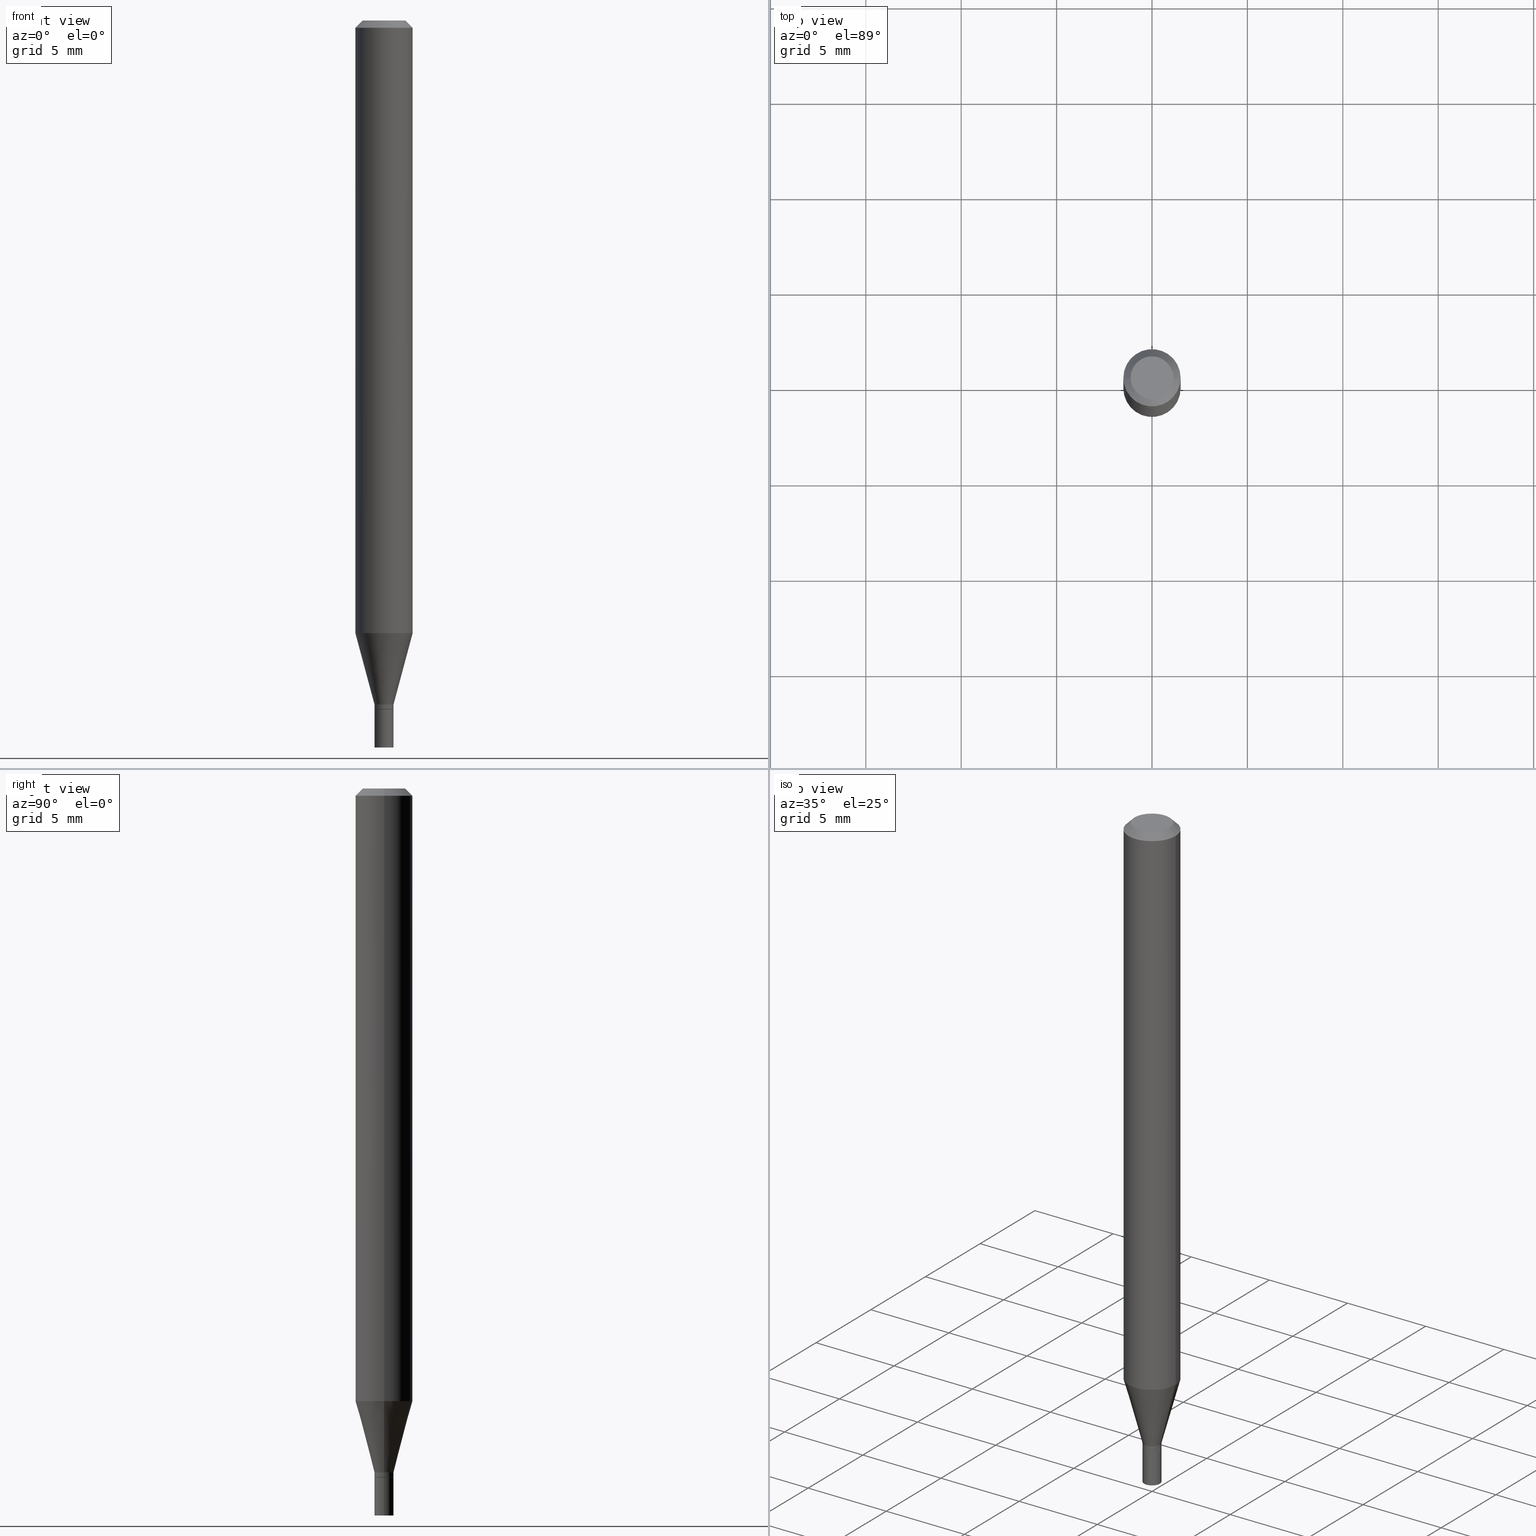
[diagram: canonical four-view strip — front | top / right | iso, engineering-drawing reading convention]
A machine part, canonical four-view strip (front | top / right | iso — engineering-drawing reading convention). The complete STEP part file that produces these views, byte-faithful:
ISO-10303-21;
HEADER;
FILE_DESCRIPTION (( 'STEP AP203' ),
    '1' );
FILE_NAME ('49178.STEP',
    '2024-03-12T20:01:40',
    ( '' ),
    ( '' ),
    'SwSTEP 2.0',
    'SolidWorks 2023',
    '' );
FILE_SCHEMA (( 'CONFIG_CONTROL_DESIGN' ));
ENDSEC;

DATA;
#1 = ORIENTED_EDGE ( 'NONE', *, *, #444, .T. ) ;
#2 = CARTESIAN_POINT ( 'NONE',  ( 3.475744814230934489E-29, -4.962442426897762471E-15, -1.421300000000000008 ) ) ;
#3 = EDGE_CURVE ( 'NONE', #101, #411, #175, .T. ) ;
#4 = ORIENTED_EDGE ( 'NONE', *, *, #112, .T. ) ;
#5 = LINE ( 'NONE', #40, #166 ) ;
#6 = AXIS2_PLACEMENT_3D ( 'NONE', #19, #452, #25 ) ;
#7 = PERSON_AND_ORGANIZATION ( #326, #371 ) ;
#8 = CARTESIAN_POINT ( 'NONE',  ( 0.01969999999999978713, -1.375643647504179818E-16, 9.606068248317889872E-31 ) ) ;
#9 = CALENDAR_DATE ( 2024, 12, 3 ) ;
#10 = DIRECTION ( 'NONE',  ( 1.000000000000000000, -6.982962677686265922E-15, 4.819687581474398999E-29 ) ) ;
#11 = MECHANICAL_CONTEXT ( 'NONE', #106, 'mechanical' ) ;
#12 = ORIENTED_EDGE ( 'NONE', *, *, #215, .F. ) ;
#13 = PRODUCT_DEFINITION ( 'UNKNOWN', '', #350, #96 ) ;
#14 = DIRECTION ( 'NONE',  ( 0.7071067811865656694, -2.468850131082446387E-15, 0.7071067811865294761 ) ) ;
#15 = VECTOR ( 'NONE', #37, 39.37007874015748143 ) ;
#16 = ORIENTED_EDGE ( 'NONE', *, *, #258, .F. ) ;
#17 = CARTESIAN_POINT ( 'NONE',  ( -0.01919999999999999485, -4.823368994457712071E-15, -1.421300000000000008 ) ) ;
#18 = EDGE_CURVE ( 'NONE', #271, #397, #209, .T. ) ;
#19 = CARTESIAN_POINT ( 'NONE',  ( 0.000000000000000000, 0.000000000000000000, 0.000000000000000000 ) ) ;
#20 = COORDINATED_UNIVERSAL_TIME_OFFSET ( 5, 0, .BEHIND. ) ;
#21 = VERTEX_POINT ( 'NONE', #341 ) ;
#22 = CARTESIAN_POINT ( 'NONE',  ( 3.668203209277705088E-31, -5.237222008264718399E-17, -0.01499999999999999944 ) ) ;
#23 = ORIENTED_EDGE ( 'NONE', *, *, #54, .F. ) ;
#24 = ORIENTED_EDGE ( 'NONE', *, *, #65, .F. ) ;
#25 = DIRECTION ( 'NONE',  ( 1.000000000000000000, -6.982962677686267499E-15, 4.876176775795935793E-29 ) ) ;
#26 = CARTESIAN_POINT ( 'NONE',  ( 3.450556485527227711E-29, -4.926480169107677920E-15, -1.411000000000000032 ) ) ;
#27 = CIRCLE ( 'NONE', #279, 0.01969999999999965529 ) ;
#28 = LOCAL_TIME ( 16, 1, 40.00000000000000000, #307 ) ;
#29 = CLOSED_SHELL ( 'NONE', ( #30, #170, #220, #377 ) ) ;
#30 = ADVANCED_FACE ( 'NONE', ( #165 ), #97, .T. ) ;
#31 = CARTESIAN_POINT ( 'NONE',  ( -0.01969999999999999876, -4.959855298636500621E-15, -1.500000000000000222 ) ) ;
#32 = CONICAL_SURFACE ( 'NONE', #160, 0.05905000000000001914, 0.7853981633974372878 ) ;
#33 = ORIENTED_EDGE ( 'NONE', *, *, #98, .F. ) ;
#34 = CARTESIAN_POINT ( 'NONE',  ( 0.05905000000000001914, -4.826078435953056786E-15, -1.264143800722163924 ) ) ;
#35 = DIRECTION ( 'NONE',  ( 1.000000000000000000, -6.982962677686258033E-15, 0.000000000000000000 ) ) ;
#36 = EDGE_LOOP ( 'NONE', ( #418, #274, #221, #265 ) ) ;
#37 = DIRECTION ( 'NONE',  ( -0.7071067811865656694, 7.493145998870420424E-15, 0.7071067811865294761 ) ) ;
#38 = AXIS2_PLACEMENT_3D ( 'NONE', #299, #334, #224 ) ;
#39 = PERSON_AND_ORGANIZATION ( #326, #371 ) ;
#40 = CARTESIAN_POINT ( 'NONE',  ( 0.01969999999999965529, -5.064044533858094768E-15, -1.411000000000000032 ) ) ;
#41 = EDGE_CURVE ( 'NONE', #21, #338, #313, .T. ) ;
#42 = ORIENTED_EDGE ( 'NONE', *, *, #79, .F. ) ;
#43 = PLANE ( 'NONE',  #316 ) ;
#44 = ORIENTED_EDGE ( 'NONE', *, *, #306, .F. ) ;
#45 = DIRECTION ( 'NONE',  ( -2.445468806185136597E-29, 3.491481338843145583E-15, 1.000000000000000000 ) ) ;
#46 = AXIS2_PLACEMENT_3D ( 'NONE', #205, #64, #169 ) ;
#47 = ORIENTED_EDGE ( 'NONE', *, *, #456, .F. ) ;
#48 = CARTESIAN_POINT ( 'NONE',  ( 3.475744814230934489E-29, -4.962442426897762471E-15, -1.421300000000000008 ) ) ;
#49 = PERSON_AND_ORGANIZATION ( #326, #371 ) ;
#50 = DIRECTION ( 'NONE',  ( -2.445468806185136597E-29, 3.491481338843145583E-15, 1.000000000000000000 ) ) ;
#51 = ORIENTED_EDGE ( 'NONE', *, *, #247, .F. ) ;
#52 = CARTESIAN_POINT ( 'NONE',  ( 0.000000000000000000, 0.000000000000000000, 0.000000000000000000 ) ) ;
#53 = APPROVAL_ROLE ( '' ) ;
#54 = EDGE_CURVE ( 'NONE', #129, #405, #457, .T. ) ;
#55 = AXIS2_PLACEMENT_3D ( 'NONE', #267, #50, #419 ) ;
#56 = FACE_OUTER_BOUND ( 'NONE', #85, .T. ) ;
#57 = ORIENTED_EDGE ( 'NONE', *, *, #392, .T. ) ;
#58 = DIRECTION ( 'NONE',  ( 1.000000000000000000, -6.982962677686270655E-15, 0.000000000000000000 ) ) ;
#59 = ORIENTED_EDGE ( 'NONE', *, *, #258, .T. ) ;
#60 = DIRECTION ( 'NONE',  ( -2.445468806185136597E-29, 3.491481338843145583E-15, 1.000000000000000000 ) ) ;
#61 = CIRCLE ( 'NONE', #130, 0.01969999999999965529 ) ;
#62 = ORIENTED_EDGE ( 'NONE', *, *, #202, .T. ) ;
#63 = ADVANCED_FACE ( 'NONE', ( #134 ), #459, .F. ) ;
#64 = DIRECTION ( 'NONE',  ( -2.445468806185136597E-29, 3.491481338843145583E-15, 1.000000000000000000 ) ) ;
#65 = EDGE_CURVE ( 'NONE', #324, #21, #425, .T. ) ;
#66 = ORIENTED_EDGE ( 'NONE', *, *, #247, .T. ) ;
#67 = CARTESIAN_POINT ( 'NONE',  ( -8.641182519006289553E-45, 1.233731848647591164E-30, 3.533548453838711334E-16 ) ) ;
#68 = APPROVAL_ROLE ( '' ) ;
#69 = ADVANCED_FACE ( 'NONE', ( #403 ), #344, .T. ) ;
#70 = DIRECTION ( 'NONE',  ( -2.445468806185136597E-29, 3.491481338843145583E-15, 1.000000000000000000 ) ) ;
#71 = CARTESIAN_POINT ( 'NONE',  ( 0.000000000000000000, 0.000000000000000000, 0.000000000000000000 ) ) ;
#72 = CARTESIAN_POINT ( 'NONE',  ( 0.01969999999999999876, -1.375643647504194363E-16, 9.606068248317991466E-31 ) ) ;
#73 = PERSON_AND_ORGANIZATION_ROLE ( 'design_owner' ) ;
#74 = DIRECTION ( 'NONE',  ( 1.000000000000000000, -6.982962677686278543E-15, 0.000000000000000000 ) ) ;
#75 = ORIENTED_EDGE ( 'NONE', *, *, #98, .T. ) ;
#76 = FACE_OUTER_BOUND ( 'NONE', #408, .T. ) ;
#77 = VECTOR ( 'NONE', #288, 39.37007874015748143 ) ;
#78 = EDGE_CURVE ( 'NONE', #271, #197, #213, .T. ) ;
#79 = EDGE_CURVE ( 'NONE', #101, #365, #178, .T. ) ;
#80 = ORIENTED_EDGE ( 'NONE', *, *, #41, .T. ) ;
#81 = DIRECTION ( 'NONE',  ( -2.445468806185136597E-29, 3.491481338843145583E-15, 1.000000000000000000 ) ) ;
#82 = PERSON_AND_ORGANIZATION ( #326, #371 ) ;
#83 = ORIENTED_EDGE ( 'NONE', *, *, #18, .F. ) ;
#84 = CARTESIAN_POINT ( 'NONE',  ( 3.668203209277705088E-31, -5.237222008264718399E-17, -0.01499999999999999944 ) ) ;
#85 = EDGE_LOOP ( 'NONE', ( #320, #59, #4, #464 ) ) ;
#86 = DIRECTION ( 'NONE',  ( 2.438088387897960049E-29, -3.491481338843145188E-15, -1.000000000000000000 ) ) ;
#87 = APPROVAL_DATE_TIME ( #417, #273 ) ;
#88 = ORIENTED_EDGE ( 'NONE', *, *, #456, .T. ) ;
#89 = FACE_OUTER_BOUND ( 'NONE', #437, .T. ) ;
#90 = PERSON_AND_ORGANIZATION_ROLE ( 'classification_officer' ) ;
#91 = ORIENTED_EDGE ( 'NONE', *, *, #78, .T. ) ;
#92 = FACE_OUTER_BOUND ( 'NONE', #136, .T. ) ;
#93 = APPLICATION_CONTEXT ( 'configuration controlled 3d designs of mechanical parts and assemblies' ) ;
#94 = CARTESIAN_POINT ( 'NONE',  ( 3.475744814230934489E-29, -4.962442426897762471E-15, -1.421300000000000008 ) ) ;
#95 = CC_DESIGN_APPROVAL ( #103, ( #13 ) ) ;
#96 = DESIGN_CONTEXT ( 'detailed design', #93, 'design' ) ;
#97 = CYLINDRICAL_SURFACE ( 'NONE', #184, 0.01969999999999999876 ) ;
#98 = EDGE_CURVE ( 'NONE', #324, #137, #328, .T. ) ;
#99 = DIRECTION ( 'NONE',  ( -1.000000000000000000, 6.982962677686265922E-15, -4.876176775795935793E-29 ) ) ;
#100 = CIRCLE ( 'NONE', #433, 0.01969999999999999876 ) ;
#101 = VERTEX_POINT ( 'NONE', #31 ) ;
#102 = CARTESIAN_POINT ( 'NONE',  ( 3.474522079827842248E-29, -4.960696686228341756E-15, -1.420800000000000063 ) ) ;
#103 = APPROVAL ( #148, 'UNSPECIFIED' ) ;
#104 = APPROVAL_STATUS ( 'not_yet_approved' ) ;
#105 = CC_DESIGN_PERSON_AND_ORGANIZATION_ASSIGNMENT ( #332, #90, ( #345 ) ) ;
#106 = APPLICATION_CONTEXT ( 'configuration controlled 3d designs of mechanical parts and assemblies' ) ;
#107 = CARTESIAN_POINT ( 'NONE',  ( 3.576687321579069994E-29, -5.368277968210015545E-15, -1.500000000000000222 ) ) ;
#108 = AXIS2_PLACEMENT_3D ( 'NONE', #2, #70, #211 ) ;
#109 = CC_DESIGN_APPROVAL ( #372, ( #350 ) ) ;
#110 = CARTESIAN_POINT ( 'NONE',  ( -0.05905000000000001914, 4.195754854663392958E-16, -2.904631170795522943E-30 ) ) ;
#111 = CALENDAR_DATE ( 2024, 12, 3 ) ;
#112 = EDGE_CURVE ( 'NONE', #429, #129, #5, .T. ) ;
#113 = DIRECTION ( 'NONE',  ( -2.445468806185136597E-29, 3.491481338843145583E-15, 1.000000000000000000 ) ) ;
#114 = PERSON_AND_ORGANIZATION_ROLE ( 'creator' ) ;
#115 = ORIENTED_EDGE ( 'NONE', *, *, #428, .T. ) ;
#116 = DIRECTION ( 'NONE',  ( -2.445468806185136597E-29, 3.491481338843145583E-15, 1.000000000000000000 ) ) ;
#117 = VECTOR ( 'NONE', #348, 39.37007874015748143 ) ;
#118 = CC_DESIGN_PERSON_AND_ORGANIZATION_ASSIGNMENT ( #49, #406, ( #350 ) ) ;
#119 = DATE_TIME_ROLE ( 'creation_date' ) ;
#120 = FACE_OUTER_BOUND ( 'NONE', #315, .T. ) ;
#121 = ORIENTED_EDGE ( 'NONE', *, *, #428, .F. ) ;
#122 = CARTESIAN_POINT ( 'NONE',  ( -0.04404999999999999888, 3.337856159934041534E-16, 3.533548453838689148E-16 ) ) ;
#123 = FACE_OUTER_BOUND ( 'NONE', #281, .T. ) ;
#124 = AXIS2_PLACEMENT_3D ( 'NONE', #254, #81, #186 ) ;
#125 = CONICAL_SURFACE ( 'NONE', #295, 0.01969999999999965529, 0.2617993877991505181 ) ;
#126 = CARTESIAN_POINT ( 'NONE',  ( 0.01919999999999999485, -5.096515310309338678E-15, -1.421300000000000008 ) ) ;
#127 = DIRECTION ( 'NONE',  ( 1.000000000000000000, -6.982962677686252511E-15, 0.000000000000000000 ) ) ;
#128 = DATE_AND_TIME ( #303, #249 ) ;
#129 = VERTEX_POINT ( 'NONE', #34 ) ;
#130 = AXIS2_PLACEMENT_3D ( 'NONE', #194, #415, #127 ) ;
#131 = CIRCLE ( 'NONE', #191, 0.01969999999999991896 ) ;
#132 = DIRECTION ( 'NONE',  ( 2.438088387897960049E-29, -3.491481338843145188E-15, -1.000000000000000000 ) ) ;
#133 = CC_DESIGN_DATE_AND_TIME_ASSIGNMENT ( #269, #226, ( #345 ) ) ;
#134 = FACE_OUTER_BOUND ( 'NONE', #402, .T. ) ;
#135 = AXIS2_PLACEMENT_3D ( 'NONE', #107, #361, #436 ) ;
#136 = EDGE_LOOP ( 'NONE', ( #62, #80, #44, #375 ) ) ;
#137 = VERTEX_POINT ( 'NONE', #245 ) ;
#138 = CARTESIAN_POINT ( 'NONE',  ( 0.01969999999999999876, -5.100006791648182474E-15, -1.421300000000000008 ) ) ;
#139 = ORIENTED_EDGE ( 'NONE', *, *, #387, .T. ) ;
#140 = DIRECTION ( 'NONE',  ( -2.445468806185136597E-29, 3.491481338843145583E-15, 1.000000000000000000 ) ) ;
#141 =( NAMED_UNIT ( * ) SI_UNIT ( $, .STERADIAN. ) SOLID_ANGLE_UNIT ( ) );
#142 = ORIENTED_EDGE ( 'NONE', *, *, #430, .T. ) ;
#143 = LINE ( 'NONE', #72, #441 ) ;
#144 = MANIFOLD_SOLID_BREP ( 'Body-Move/Copy2[2]', #381 ) ;
#145 = FACE_OUTER_BOUND ( 'NONE', #206, .T. ) ;
#146 = MANIFOLD_SOLID_BREP ( 'Body-Move/Copy2[1]', #29 ) ;
#147 = CYLINDRICAL_SURFACE ( 'NONE', #379, 0.05905000000000001914 ) ;
#148 = APPROVAL_STATUS ( 'not_yet_approved' ) ;
#149 = VERTEX_POINT ( 'NONE', #138 ) ;
#150 = DIRECTION ( 'NONE',  ( 1.000000000000000000, -6.982962677686266711E-15, 0.000000000000000000 ) ) ;
#151 = AXIS2_PLACEMENT_3D ( 'NONE', #370, #228, #150 ) ;
#152 = APPROVAL_PERSON_ORGANIZATION ( #208, #372, #246 ) ;
#153 = ORIENTED_EDGE ( 'NONE', *, *, #215, .T. ) ;
#154 = CYLINDRICAL_SURFACE ( 'NONE', #426, 0.05905000000000001914 ) ;
#155 = EDGE_CURVE ( 'NONE', #383, #429, #183, .T. ) ;
#156 = EDGE_LOOP ( 'NONE', ( #12, #242, #253, #174 ) ) ;
#157 = LINE ( 'NONE', #126, #232 ) ;
#158 = ORIENTED_EDGE ( 'NONE', *, *, #163, .F. ) ;
#159 = DIRECTION ( 'NONE',  ( 1.000000000000000000, -6.982962677686266711E-15, 0.000000000000000000 ) ) ;
#160 = AXIS2_PLACEMENT_3D ( 'NONE', #84, #230, #376 ) ;
#161 = LOCAL_TIME ( 16, 1, 40.00000000000000000, #255 ) ;
#162 = ORIENTED_EDGE ( 'NONE', *, *, #79, .T. ) ;
#163 = EDGE_CURVE ( 'NONE', #411, #101, #100, .T. ) ;
#164 = DIRECTION ( 'NONE',  ( 1.000000000000000000, -6.982962677686266711E-15, 4.876176775795935793E-29 ) ) ;
#165 = FACE_OUTER_BOUND ( 'NONE', #447, .T. ) ;
#166 = VECTOR ( 'NONE', #251, 39.37007874015748143 ) ;
#167 = LOCAL_TIME ( 16, 1, 40.00000000000000000, #20 ) ;
#168 = CARTESIAN_POINT ( 'NONE',  ( 0.04404999999999999888, -3.798447818264455642E-16, 3.533548453838735986E-16 ) ) ;
#169 = DIRECTION ( 'NONE',  ( 1.000000000000000000, -6.982962677686278543E-15, 0.000000000000000000 ) ) ;
#170 = ADVANCED_FACE ( 'NONE', ( #145 ), #176, .F. ) ;
#171 = ORIENTED_EDGE ( 'NONE', *, *, #277, .F. ) ;
#172 = DIRECTION ( 'NONE',  ( -2.445468806185136597E-29, 3.491481338843145583E-15, 1.000000000000000000 ) ) ;
#173 = VECTOR ( 'NONE', #180, 39.37007874015748143 ) ;
#174 = ORIENTED_EDGE ( 'NONE', *, *, #78, .F. ) ;
#175 = CIRCLE ( 'NONE', #46, 0.01969999999999999876 ) ;
#176 = PLANE ( 'NONE',  #135 ) ;
#177 =( CONVERSION_BASED_UNIT ( 'INCH', #362 ) LENGTH_UNIT ( ) NAMED_UNIT ( #308 ) );
#178 = LINE ( 'NONE', #214, #77 ) ;
#179 = DIRECTION ( 'NONE',  ( -2.445468806185136597E-29, 3.491481338843145583E-15, 1.000000000000000000 ) ) ;
#180 = DIRECTION ( 'NONE',  ( -0.2588190451025217942, 5.211531920934552619E-15, 0.9659258262890679791 ) ) ;
#181 = ORIENTED_EDGE ( 'NONE', *, *, #65, .T. ) ;
#182 = CONICAL_SURFACE ( 'NONE', #38, 0.01969999999999965529, 0.2617993877991505181 ) ;
#183 = LINE ( 'NONE', #8, #117 ) ;
#184 = AXIS2_PLACEMENT_3D ( 'NONE', #310, #314, #309 ) ;
#185 = CC_DESIGN_SECURITY_CLASSIFICATION ( #345, ( #350 ) ) ;
#186 = DIRECTION ( 'NONE',  ( 1.000000000000000000, -6.982962677686253300E-15, 0.000000000000000000 ) ) ;
#187 = DIRECTION ( 'NONE',  ( -2.445468806185136597E-29, 3.491481338843145583E-15, 1.000000000000000000 ) ) ;
#188 = ADVANCED_FACE ( 'NONE', ( #465 ), #272, .T. ) ;
#189 = DIRECTION ( 'NONE',  ( 1.000000000000000000, -6.982962677686252511E-15, 0.000000000000000000 ) ) ;
#190 = DIRECTION ( 'NONE',  ( -1.000000000000000000, 6.982962677686265922E-15, -4.876176775795935793E-29 ) ) ;
#191 = AXIS2_PLACEMENT_3D ( 'NONE', #466, #187, #356 ) ;
#192 = ORIENTED_EDGE ( 'NONE', *, *, #18, .T. ) ;
#193 = CYLINDRICAL_SURFACE ( 'NONE', #6, 0.01969999999999978713 ) ;
#194 = CARTESIAN_POINT ( 'NONE',  ( 3.450556485527227711E-29, -4.926480169107677920E-15, -1.411000000000000032 ) ) ;
#195 = EDGE_CURVE ( 'NONE', #405, #197, #290, .T. ) ;
#196 = CALENDAR_DATE ( 2024, 12, 3 ) ;
#197 = VERTEX_POINT ( 'NONE', #431 ) ;
#198 = DIRECTION ( 'NONE',  ( -2.445468806185136597E-29, 3.491481338843145583E-15, 1.000000000000000000 ) ) ;
#199 = VECTOR ( 'NONE', #410, 39.37007874015748143 ) ;
#200 = AXIS2_PLACEMENT_3D ( 'NONE', #48, #294, #443 ) ;
#201 = CARTESIAN_POINT ( 'NONE',  ( -0.05905000000000001914, -3.994159004369343951E-15, -1.264143800722163924 ) ) ;
#202 = EDGE_CURVE ( 'NONE', #383, #21, #225, .T. ) ;
#203 = ORIENTED_EDGE ( 'NONE', *, *, #416, .F. ) ;
#204 = AXIS2_PLACEMENT_3D ( 'NONE', #275, #422, #207 ) ;
#205 = CARTESIAN_POINT ( 'NONE',  ( 3.668203209277704895E-29, -5.237222008264718177E-15, -1.500000000000000222 ) ) ;
#206 = EDGE_LOOP ( 'NONE', ( #158, #260 ) ) ;
#207 = DIRECTION ( 'NONE',  ( 1.000000000000000000, -6.982962677686265922E-15, 4.819687581474398999E-29 ) ) ;
#208 = PERSON_AND_ORGANIZATION ( #326, #371 ) ;
#209 = CIRCLE ( 'NONE', #204, 0.04404999999999999888 ) ;
#210 = CYLINDRICAL_SURFACE ( 'NONE', #384, 0.01969999999999999876 ) ;
#211 = DIRECTION ( 'NONE',  ( 1.000000000000000000, -6.982962677686253300E-15, 0.000000000000000000 ) ) ;
#212 = DIRECTION ( 'NONE',  ( 1.000000000000000000, 0.000000000000000000, 0.000000000000000000 ) ) ;
#213 = LINE ( 'NONE', #285, #369 ) ;
#214 = CARTESIAN_POINT ( 'NONE',  ( -0.01969999999999999876, 1.399769189447397278E-16, -9.690302127802162501E-31 ) ) ;
#215 = EDGE_CURVE ( 'NONE', #397, #271, #301, .T. ) ;
#216 = DATE_AND_TIME ( #111, #161 ) ;
#217 = PRODUCT ( '49178', '49178', '', ( #11 ) ) ;
#218 = ORIENTED_EDGE ( 'NONE', *, *, #277, .T. ) ;
#219 = FACE_OUTER_BOUND ( 'NONE', #237, .T. ) ;
#220 = ADVANCED_FACE ( 'NONE', ( #398 ), #210, .T. ) ;
#221 = ORIENTED_EDGE ( 'NONE', *, *, #352, .F. ) ;
#222 = CARTESIAN_POINT ( 'NONE',  ( 0.000000000000000000, 0.000000000000000000, 0.000000000000000000 ) ) ;
#223 = PERSON_AND_ORGANIZATION_ROLE ( 'creator' ) ;
#224 = DIRECTION ( 'NONE',  ( 1.000000000000000000, -6.982962677686252511E-15, 0.000000000000000000 ) ) ;
#225 = CIRCLE ( 'NONE', #286, 0.01969999999999991896 ) ;
#226 = DATE_TIME_ROLE ( 'classification_date' ) ;
#227 = ADVANCED_BREP_SHAPE_REPRESENTATION ( '49178', ( #146, #144, #312 ), #458 ) ;
#228 = DIRECTION ( 'NONE',  ( -2.445468806185136597E-29, 3.491481338843145583E-15, 1.000000000000000000 ) ) ;
#229 = ORIENTED_EDGE ( 'NONE', *, *, #284, .T. ) ;
#230 = DIRECTION ( 'NONE',  ( 2.445468806185136597E-29, -3.491481338843145583E-15, -1.000000000000000000 ) ) ;
#231 = EDGE_LOOP ( 'NONE', ( #203, #83, #91, #139 ) ) ;
#232 = VECTOR ( 'NONE', #14, 39.37007874015748143 ) ;
#233 = AXIS2_PLACEMENT_3D ( 'NONE', #252, #179, #291 ) ;
#234 = ADVANCED_FACE ( 'NONE', ( #76 ), #147, .T. ) ;
#235 = CARTESIAN_POINT ( 'NONE',  ( 3.091424231198371780E-29, -4.413734489835683444E-15, -1.264143800722163924 ) ) ;
#236 = CC_DESIGN_DATE_AND_TIME_ASSIGNMENT ( #216, #119, ( #13 ) ) ;
#237 = EDGE_LOOP ( 'NONE', ( #57, #115 ) ) ;
#238 = AXIS2_PLACEMENT_3D ( 'NONE', #389, #257, #283 ) ;
#239 = DIRECTION ( 'NONE',  ( 0.7071067811865396902, -7.319954787623229224E-15, -0.7071067811865553443 ) ) ;
#240 = ORIENTED_EDGE ( 'NONE', *, *, #195, .F. ) ;
#241 = EDGE_CURVE ( 'NONE', #338, #405, #393, .T. ) ;
#242 = ORIENTED_EDGE ( 'NONE', *, *, #416, .T. ) ;
#243 = PRODUCT_RELATED_PRODUCT_CATEGORY ( 'detail', '', ( #217 ) ) ;
#244 = VERTEX_POINT ( 'NONE', #321 ) ;
#245 = CARTESIAN_POINT ( 'NONE',  ( 0.01919999999999999485, -5.096515310309338678E-15, -1.421300000000000008 ) ) ;
#246 = APPROVAL_ROLE ( '' ) ;
#247 = EDGE_CURVE ( 'NONE', #411, #149, #143, .T. ) ;
#248 = AXIS2_PLACEMENT_3D ( 'NONE', #22, #445, #159 ) ;
#249 = LOCAL_TIME ( 16, 1, 40.00000000000000000, #297 ) ;
#250 = DIRECTION ( 'NONE',  ( 1.000000000000000000, -6.982962677686266711E-15, 4.876176775795935793E-29 ) ) ;
#251 = DIRECTION ( 'NONE',  ( 0.2588190451025217942, 1.565188264969618812E-15, 0.9659258262890679791 ) ) ;
#252 = CARTESIAN_POINT ( 'NONE',  ( 3.091424231198371780E-29, -4.413734489835683444E-15, -1.264143800722163924 ) ) ;
#253 = ORIENTED_EDGE ( 'NONE', *, *, #352, .T. ) ;
#254 = CARTESIAN_POINT ( 'NONE',  ( 3.475744814230934489E-29, -4.962442426897762471E-15, -1.421300000000000008 ) ) ;
#255 = COORDINATED_UNIVERSAL_TIME_OFFSET ( 5, 0, .BEHIND. ) ;
#256 = CONICAL_SURFACE ( 'NONE', #55, 0.01919999999999999485, 0.7853981633974739252 ) ;
#257 = DIRECTION ( 'NONE',  ( 2.445468806185136597E-29, -3.491481338843145583E-15, -1.000000000000000000 ) ) ;
#258 = EDGE_CURVE ( 'NONE', #338, #429, #27, .T. ) ;
#259 = PLANE ( 'NONE',  #449 ) ;
#260 = ORIENTED_EDGE ( 'NONE', *, *, #3, .F. ) ;
#261 = CARTESIAN_POINT ( 'NONE',  ( 0.05905000000000001914, -4.123439461173741806E-16, 2.879382386107500921E-30 ) ) ;
#262 = ORIENTED_EDGE ( 'NONE', *, *, #241, .T. ) ;
#263 = DIRECTION ( 'NONE',  ( 1.000000000000000000, -6.982962677686265922E-15, 4.876176775795935793E-29 ) ) ;
#264 = DIRECTION ( 'NONE',  ( 1.000000000000000000, -6.982962677686253300E-15, 0.000000000000000000 ) ) ;
#265 = ORIENTED_EDGE ( 'NONE', *, *, #284, .F. ) ;
#266 = FACE_OUTER_BOUND ( 'NONE', #156, .T. ) ;
#267 = CARTESIAN_POINT ( 'NONE',  ( 3.475744814230934489E-29, -4.962442426897762471E-15, -1.421300000000000008 ) ) ;
#268 = ADVANCED_FACE ( 'NONE', ( #123 ), #193, .T. ) ;
#269 = DATE_AND_TIME ( #453, #28 ) ;
#270 = UNCERTAINTY_MEASURE_WITH_UNIT (LENGTH_MEASURE( 1.000000000000000082E-05 ), #177, 'distance_accuracy_value', 'NONE');
#271 = VERTEX_POINT ( 'NONE', #122 ) ;
#272 = CONICAL_SURFACE ( 'NONE', #238, 0.05905000000000001914, 0.7853981633974372878 ) ;
#273 = APPROVAL ( #378, 'UNSPECIFIED' ) ;
#274 = ORIENTED_EDGE ( 'NONE', *, *, #195, .T. ) ;
#275 = CARTESIAN_POINT ( 'NONE',  ( -8.641182519006289553E-45, 1.233731848647591164E-30, 3.533548453838711334E-16 ) ) ;
#276 = ORIENTED_EDGE ( 'NONE', *, *, #387, .F. ) ;
#277 = EDGE_CURVE ( 'NONE', #137, #383, #157, .T. ) ;
#278 = CARTESIAN_POINT ( 'NONE',  ( 3.075995059520799729E-16, 0.04404999999999999888, 2.287766971589501637E-17 ) ) ;
#279 = AXIS2_PLACEMENT_3D ( 'NONE', #305, #364, #189 ) ;
#280 = DIRECTION ( 'NONE',  ( -2.445468806185136597E-29, 3.491481338843145583E-15, 1.000000000000000000 ) ) ;
#281 = EDGE_LOOP ( 'NONE', ( #304, #88, #343, #16 ) ) ;
#282 = EDGE_LOOP ( 'NONE', ( #24, #75, #218, #47 ) ) ;
#283 = DIRECTION ( 'NONE',  ( -1.000000000000000000, 6.982962677686266711E-15, 0.000000000000000000 ) ) ;
#284 = EDGE_CURVE ( 'NONE', #129, #244, #451, .T. ) ;
#285 = CARTESIAN_POINT ( 'NONE',  ( -0.05905000000000001914, 3.599717260347269535E-16, -0.01499999999999999944 ) ) ;
#286 = AXIS2_PLACEMENT_3D ( 'NONE', #102, #355, #35 ) ;
#287 = CIRCLE ( 'NONE', #442, 0.01969999999999999876 ) ;
#288 = DIRECTION ( 'NONE',  ( -2.445468806185136877E-29, 3.491481338843145188E-15, 1.000000000000000000 ) ) ;
#289 = APPLICATION_PROTOCOL_DEFINITION ( 'international standard', 'config_control_design', 1994, #93 ) ;
#290 = LINE ( 'NONE', #110, #323 ) ;
#291 = DIRECTION ( 'NONE',  ( 1.000000000000000000, -6.982962677686270655E-15, 0.000000000000000000 ) ) ;
#292 = ADVANCED_FACE ( 'NONE', ( #266 ), #32, .T. ) ;
#293 = CARTESIAN_POINT ( 'NONE',  ( 0.000000000000000000, 0.000000000000000000, 0.000000000000000000 ) ) ;
#294 = DIRECTION ( 'NONE',  ( -2.445468806185136597E-29, 3.491481338843145583E-15, 1.000000000000000000 ) ) ;
#295 = AXIS2_PLACEMENT_3D ( 'NONE', #26, #60, #342 ) ;
#296 = CYLINDRICAL_SURFACE ( 'NONE', #462, 0.01969999999999978713 ) ;
#297 = COORDINATED_UNIVERSAL_TIME_OFFSET ( 5, 0, .BEHIND. ) ;
#298 = CARTESIAN_POINT ( 'NONE',  ( 0.01969999999999965529, -5.064044533858094768E-15, -1.411000000000000032 ) ) ;
#299 = CARTESIAN_POINT ( 'NONE',  ( 3.450556485527227711E-29, -4.926480169107677920E-15, -1.411000000000000032 ) ) ;
#300 = CARTESIAN_POINT ( 'NONE',  ( -0.01969999999999965529, -4.390331127266142070E-15, -1.411000000000000032 ) ) ;
#301 = CIRCLE ( 'NONE', #412, 0.04404999999999999888 ) ;
#302 = APPROVAL_PERSON_ORGANIZATION ( #82, #273, #53 ) ;
#303 = CALENDAR_DATE ( 2024, 12, 3 ) ;
#304 = ORIENTED_EDGE ( 'NONE', *, *, #41, .F. ) ;
#305 = CARTESIAN_POINT ( 'NONE',  ( 3.450556485527227711E-29, -4.926480169107677920E-15, -1.411000000000000032 ) ) ;
#306 = EDGE_CURVE ( 'NONE', #429, #338, #61, .T. ) ;
#307 = COORDINATED_UNIVERSAL_TIME_OFFSET ( 5, 0, .BEHIND. ) ;
#308 = DIMENSIONAL_EXPONENTS ( 1.000000000000000000, 0.000000000000000000, 0.000000000000000000, 0.000000000000000000, 0.000000000000000000, 0.000000000000000000, 0.000000000000000000 ) ;
#309 = DIRECTION ( 'NONE',  ( 1.000000000000000000, -6.982962677686265922E-15, 4.876176775795935232E-29 ) ) ;
#310 = CARTESIAN_POINT ( 'NONE',  ( 0.000000000000000000, 0.000000000000000000, 0.000000000000000000 ) ) ;
#311 = AXIS2_PLACEMENT_3D ( 'NONE', #235, #382, #58 ) ;
#312 = AXIS2_PLACEMENT_3D ( 'NONE', #71, #404, #212 ) ;
#313 = LINE ( 'NONE', #461, #450 ) ;
#314 = DIRECTION ( 'NONE',  ( -2.445468806185136597E-29, 3.491481338843145583E-15, 1.000000000000000000 ) ) ;
#315 = EDGE_LOOP ( 'NONE', ( #363, #262, #23, #386 ) ) ;
#316 = AXIS2_PLACEMENT_3D ( 'NONE', #327, #86, #190 ) ;
#317 = CIRCLE ( 'NONE', #463, 0.01919999999999999485 ) ;
#318 = DIRECTION ( 'NONE',  ( -2.445468806185136597E-29, 3.491481338843145583E-15, 1.000000000000000000 ) ) ;
#319 = CARTESIAN_POINT ( 'NONE',  ( 0.000000000000000000, 0.000000000000000000, 0.000000000000000000 ) ) ;
#320 = ORIENTED_EDGE ( 'NONE', *, *, #241, .F. ) ;
#321 = CARTESIAN_POINT ( 'NONE',  ( 0.05905000000000001914, -4.647161662000214077E-16, -0.01499999999999999944 ) ) ;
#322 = DATE_AND_TIME ( #9, #360 ) ;
#323 = VECTOR ( 'NONE', #432, 39.37007874015748143 ) ;
#324 = VERTEX_POINT ( 'NONE', #17 ) ;
#325 = CARTESIAN_POINT ( 'NONE',  ( 3.668203209277704895E-29, -5.237222008264718177E-15, -1.500000000000000222 ) ) ;
#326 = PERSON ( 'UNSPECIFIED', 'UNSPECIFIED', 'UNSPECIFIED', ('UNSPECIFIED'), ('UNSPECIFIED'), ('UNSPECIFIED') ) ;
#327 = CARTESIAN_POINT ( 'NONE',  ( 1.375643647504541708E-16, 0.01969999999999503398, -1.421300000000000008 ) ) ;
#328 = CIRCLE ( 'NONE', #124, 0.01919999999999999485 ) ;
#329 = CARTESIAN_POINT ( 'NONE',  ( 0.01969999999999991896, -5.098261050978760182E-15, -1.420800000000000063 ) ) ;
#330 = PERSON_AND_ORGANIZATION ( #326, #371 ) ;
#331 = CARTESIAN_POINT ( 'NONE',  ( -0.01969999999999999876, -4.959855298636500621E-15, -1.421300000000000008 ) ) ;
#332 = PERSON_AND_ORGANIZATION ( #326, #371 ) ;
#333 = ORIENTED_EDGE ( 'NONE', *, *, #163, .T. ) ;
#334 = DIRECTION ( 'NONE',  ( -2.445468806185136597E-29, 3.491481338843145583E-15, 1.000000000000000000 ) ) ;
#335 = EDGE_LOOP ( 'NONE', ( #368, #33 ) ) ;
#336 = DIRECTION ( 'NONE',  ( -2.438088387897960049E-29, 3.491481338843145188E-15, 1.000000000000000000 ) ) ;
#337 = SECURITY_CLASSIFICATION_LEVEL ( 'unclassified' ) ;
#338 = VERTEX_POINT ( 'NONE', #300 ) ;
#339 = CC_DESIGN_PERSON_AND_ORGANIZATION_ASSIGNMENT ( #351, #73, ( #217 ) ) ;
#340 = ADVANCED_FACE ( 'NONE', ( #92 ), #296, .T. ) ;
#341 = CARTESIAN_POINT ( 'NONE',  ( -0.01969999999999991896, -4.820719767283602447E-15, -1.420800000000000063 ) ) ;
#342 = DIRECTION ( 'NONE',  ( 1.000000000000000000, -6.982962677686252511E-15, 0.000000000000000000 ) ) ;
#343 = ORIENTED_EDGE ( 'NONE', *, *, #155, .T. ) ;
#344 = CONICAL_SURFACE ( 'NONE', #108, 0.01919999999999999485, 0.7853981633974739252 ) ;
#345 = SECURITY_CLASSIFICATION ( '', '', #337 ) ;
#346 = CARTESIAN_POINT ( 'NONE',  ( 3.475744814230934489E-29, -4.962442426897762471E-15, -1.421300000000000008 ) ) ;
#347 = ADVANCED_FACE ( 'NONE', ( #120 ), #182, .T. ) ;
#348 = DIRECTION ( 'NONE',  ( -2.445468806185136877E-29, 3.491481338843145188E-15, 1.000000000000000000 ) ) ;
#349 = CIRCLE ( 'NONE', #151, 0.05905000000000001914 ) ;
#350 = PRODUCT_DEFINITION_FORMATION_WITH_SPECIFIED_SOURCE ( 'ANY', '', #217, .NOT_KNOWN. ) ;
#351 = PERSON_AND_ORGANIZATION ( #326, #371 ) ;
#352 = EDGE_CURVE ( 'NONE', #244, #197, #390, .T. ) ;
#353 = ORIENTED_EDGE ( 'NONE', *, *, #392, .F. ) ;
#354 = ADVANCED_FACE ( 'NONE', ( #413 ), #259, .F. ) ;
#355 = DIRECTION ( 'NONE',  ( -2.445468806185136597E-29, 3.491481338843145583E-15, 1.000000000000000000 ) ) ;
#356 = DIRECTION ( 'NONE',  ( 1.000000000000000000, -6.982962677686258033E-15, 0.000000000000000000 ) ) ;
#357 = DIRECTION ( 'NONE',  ( -0.7071067811865396902, 2.468850131082174625E-15, -0.7071067811865553443 ) ) ;
#358 = DIRECTION ( 'NONE',  ( -2.445468806185136877E-29, 3.491481338843145188E-15, 1.000000000000000000 ) ) ;
#359 = ADVANCED_FACE ( 'NONE', ( #448 ), #154, .T. ) ;
#360 = LOCAL_TIME ( 16, 1, 40.00000000000000000, #399 ) ;
#361 = DIRECTION ( 'NONE',  ( -2.438088387897960049E-29, 3.491481338843145188E-15, 1.000000000000000000 ) ) ;
#362 = LENGTH_MEASURE_WITH_UNIT ( LENGTH_MEASURE( 0.02539999999999999897 ), #394 );
#363 = ORIENTED_EDGE ( 'NONE', *, *, #306, .T. ) ;
#364 = DIRECTION ( 'NONE',  ( -2.445468806185136597E-29, 3.491481338843145583E-15, 1.000000000000000000 ) ) ;
#365 = VERTEX_POINT ( 'NONE', #331 ) ;
#366 = ADVANCED_FACE ( 'NONE', ( #89 ), #256, .T. ) ;
#367 = CARTESIAN_POINT ( 'NONE',  ( 3.475744814230934489E-29, -4.962442426897762471E-15, -1.421300000000000008 ) ) ;
#368 = ORIENTED_EDGE ( 'NONE', *, *, #430, .F. ) ;
#369 = VECTOR ( 'NONE', #357, 39.37007874015748143 ) ;
#370 = CARTESIAN_POINT ( 'NONE',  ( 3.668203209277705088E-31, -5.237222008264718399E-17, -0.01499999999999999944 ) ) ;
#371 = ORGANIZATION ( 'UNSPECIFIED', 'UNSPECIFIED', '' ) ;
#372 = APPROVAL ( #104, 'UNSPECIFIED' ) ;
#373 = SHAPE_DEFINITION_REPRESENTATION ( #427, #227 ) ;
#374 = DIRECTION ( 'NONE',  ( 1.000000000000000000, -6.982962677686267499E-15, 4.876176775795935793E-29 ) ) ;
#375 = ORIENTED_EDGE ( 'NONE', *, *, #155, .F. ) ;
#376 = DIRECTION ( 'NONE',  ( -1.000000000000000000, 6.982962677686266711E-15, 0.000000000000000000 ) ) ;
#377 = ADVANCED_FACE ( 'NONE', ( #219 ), #43, .F. ) ;
#378 = APPROVAL_STATUS ( 'not_yet_approved' ) ;
#379 = AXIS2_PLACEMENT_3D ( 'NONE', #293, #140, #250 ) ;
#380 = VECTOR ( 'NONE', #239, 39.37007874015748143 ) ;
#381 = CLOSED_SHELL ( 'NONE', ( #340, #366, #292, #359, #347, #395, #234, #188, #63, #354, #69, #268 ) ) ;
#382 = DIRECTION ( 'NONE',  ( -2.445468806185136597E-29, 3.491481338843145583E-15, 1.000000000000000000 ) ) ;
#383 = VERTEX_POINT ( 'NONE', #329 ) ;
#384 = AXIS2_PLACEMENT_3D ( 'NONE', #319, #116, #396 ) ;
#385 = CARTESIAN_POINT ( 'NONE',  ( -0.01919999999999999485, -4.826018221631823272E-15, -1.421300000000000008 ) ) ;
#386 = ORIENTED_EDGE ( 'NONE', *, *, #112, .F. ) ;
#387 = EDGE_CURVE ( 'NONE', #197, #244, #349, .T. ) ;
#388 = ORIENTED_EDGE ( 'NONE', *, *, #3, .T. ) ;
#389 = CARTESIAN_POINT ( 'NONE',  ( 3.668203209277705088E-31, -5.237222008264718399E-17, -0.01499999999999999944 ) ) ;
#390 = CIRCLE ( 'NONE', #248, 0.05905000000000001914 ) ;
#391 = APPROVAL_DATE_TIME ( #322, #103 ) ;
#392 = EDGE_CURVE ( 'NONE', #149, #365, #420, .T. ) ;
#393 = LINE ( 'NONE', #440, #173 ) ;
#394 =( LENGTH_UNIT ( ) NAMED_UNIT ( * ) SI_UNIT ( $, .METRE. ) );
#395 = ADVANCED_FACE ( 'NONE', ( #56 ), #125, .T. ) ;
#396 = DIRECTION ( 'NONE',  ( 1.000000000000000000, -6.982962677686265922E-15, 4.876176775795935232E-29 ) ) ;
#397 = VERTEX_POINT ( 'NONE', #168 ) ;
#398 = FACE_OUTER_BOUND ( 'NONE', #455, .T. ) ;
#399 = COORDINATED_UNIVERSAL_TIME_OFFSET ( 5, 0, .BEHIND. ) ;
#400 = AXIS2_PLACEMENT_3D ( 'NONE', #278, #132, #99 ) ;
#401 = CIRCLE ( 'NONE', #233, 0.05905000000000001914 ) ;
#402 = EDGE_LOOP ( 'NONE', ( #192, #153 ) ) ;
#403 = FACE_OUTER_BOUND ( 'NONE', #282, .T. ) ;
#404 = DIRECTION ( 'NONE',  ( 0.000000000000000000, 0.000000000000000000, 1.000000000000000000 ) ) ;
#405 = VERTEX_POINT ( 'NONE', #201 ) ;
#406 = PERSON_AND_ORGANIZATION_ROLE ( 'design_supplier' ) ;
#407 = CC_DESIGN_PERSON_AND_ORGANIZATION_ASSIGNMENT ( #7, #114, ( #13 ) ) ;
#408 = EDGE_LOOP ( 'NONE', ( #240, #1, #229, #276 ) ) ;
#409 = CC_DESIGN_PERSON_AND_ORGANIZATION_ASSIGNMENT ( #330, #223, ( #350 ) ) ;
#410 = DIRECTION ( 'NONE',  ( -2.445468806185136877E-29, 3.491481338843145188E-15, 1.000000000000000000 ) ) ;
#411 = VERTEX_POINT ( 'NONE', #423 ) ;
#412 = AXIS2_PLACEMENT_3D ( 'NONE', #67, #113, #10 ) ;
#413 = FACE_OUTER_BOUND ( 'NONE', #335, .T. ) ;
#414 = ORIENTED_EDGE ( 'NONE', *, *, #202, .F. ) ;
#415 = DIRECTION ( 'NONE',  ( -2.445468806185136597E-29, 3.491481338843145583E-15, 1.000000000000000000 ) ) ;
#416 = EDGE_CURVE ( 'NONE', #397, #244, #454, .T. ) ;
#417 = DATE_AND_TIME ( #196, #167 ) ;
#418 = ORIENTED_EDGE ( 'NONE', *, *, #54, .T. ) ;
#419 = DIRECTION ( 'NONE',  ( 1.000000000000000000, -6.982962677686253300E-15, 0.000000000000000000 ) ) ;
#420 = CIRCLE ( 'NONE', #200, 0.01969999999999999876 ) ;
#421 = CC_DESIGN_APPROVAL ( #273, ( #345 ) ) ;
#422 = DIRECTION ( 'NONE',  ( -2.445468806185136597E-29, 3.491481338843145583E-15, 1.000000000000000000 ) ) ;
#423 = CARTESIAN_POINT ( 'NONE',  ( 0.01969999999999999876, -5.374786373015138180E-15, -1.500000000000000222 ) ) ;
#424 = CARTESIAN_POINT ( 'NONE',  ( 0.05905000000000001914, -4.574846268510562433E-16, -0.01499999999999999944 ) ) ;
#425 = LINE ( 'NONE', #385, #15 ) ;
#426 = AXIS2_PLACEMENT_3D ( 'NONE', #222, #45, #164 ) ;
#427 = PRODUCT_DEFINITION_SHAPE ( 'NONE', 'NONE',  #13 ) ;
#428 = EDGE_CURVE ( 'NONE', #365, #149, #287, .T. ) ;
#429 = VERTEX_POINT ( 'NONE', #298 ) ;
#430 = EDGE_CURVE ( 'NONE', #137, #324, #317, .T. ) ;
#431 = CARTESIAN_POINT ( 'NONE',  ( -0.05905000000000001914, -1.813477869492825966E-15, -0.01499999999999999944 ) ) ;
#432 = DIRECTION ( 'NONE',  ( -2.445468806185136877E-29, 3.491481338843145188E-15, 1.000000000000000000 ) ) ;
#433 = AXIS2_PLACEMENT_3D ( 'NONE', #325, #318, #438 ) ;
#434 = APPROVAL_PERSON_ORGANIZATION ( #39, #103, #68 ) ;
#435 =( NAMED_UNIT ( * ) PLANE_ANGLE_UNIT ( ) SI_UNIT ( $, .RADIAN. ) );
#436 = DIRECTION ( 'NONE',  ( 1.000000000000000000, -6.982962677686265922E-15, 4.876176775795935793E-29 ) ) ;
#437 = EDGE_LOOP ( 'NONE', ( #142, #181, #414, #171 ) ) ;
#438 = DIRECTION ( 'NONE',  ( 1.000000000000000000, -6.982962677686278543E-15, 0.000000000000000000 ) ) ;
#439 = APPLICATION_PROTOCOL_DEFINITION ( 'international standard', 'config_control_design', 1994, #106 ) ;
#440 = CARTESIAN_POINT ( 'NONE',  ( -0.01969999999999965529, -4.786503250162940978E-15, -1.411000000000000032 ) ) ;
#441 = VECTOR ( 'NONE', #358, 39.37007874015748143 ) ;
#442 = AXIS2_PLACEMENT_3D ( 'NONE', #346, #172, #74 ) ;
#443 = DIRECTION ( 'NONE',  ( 1.000000000000000000, -6.982962677686278543E-15, 0.000000000000000000 ) ) ;
#444 = EDGE_CURVE ( 'NONE', #405, #129, #401, .T. ) ;
#445 = DIRECTION ( 'NONE',  ( -2.445468806185136597E-29, 3.491481338843145583E-15, 1.000000000000000000 ) ) ;
#446 = APPROVAL_DATE_TIME ( #128, #372 ) ;
#447 = EDGE_LOOP ( 'NONE', ( #333, #162, #353, #51 ) ) ;
#448 = FACE_OUTER_BOUND ( 'NONE', #36, .T. ) ;
#449 = AXIS2_PLACEMENT_3D ( 'NONE', #367, #336, #263 ) ;
#450 = VECTOR ( 'NONE', #460, 39.37007874015748143 ) ;
#451 = LINE ( 'NONE', #261, #199 ) ;
#452 = DIRECTION ( 'NONE',  ( -2.445468806185136597E-29, 3.491481338843145583E-15, 1.000000000000000000 ) ) ;
#453 = CALENDAR_DATE ( 2024, 12, 3 ) ;
#454 = LINE ( 'NONE', #424, #380 ) ;
#455 = EDGE_LOOP ( 'NONE', ( #42, #388, #66, #121 ) ) ;
#456 = EDGE_CURVE ( 'NONE', #21, #383, #131, .T. ) ;
#457 = CIRCLE ( 'NONE', #311, 0.05905000000000001914 ) ;
#458 =( GEOMETRIC_REPRESENTATION_CONTEXT ( 3 ) GLOBAL_UNCERTAINTY_ASSIGNED_CONTEXT ( ( #270 ) ) GLOBAL_UNIT_ASSIGNED_CONTEXT ( ( #177, #435, #141 ) ) REPRESENTATION_CONTEXT ( 'NONE', 'WORKASPACE' ) );
#459 = PLANE ( 'NONE',  #400 ) ;
#460 = DIRECTION ( 'NONE',  ( -2.445468806185136877E-29, 3.491481338843145188E-15, 1.000000000000000000 ) ) ;
#461 = CARTESIAN_POINT ( 'NONE',  ( -0.01969999999999978713, 1.399769189447382241E-16, -9.690302127802059155E-31 ) ) ;
#462 = AXIS2_PLACEMENT_3D ( 'NONE', #52, #198, #374 ) ;
#463 = AXIS2_PLACEMENT_3D ( 'NONE', #94, #280, #264 ) ;
#464 = ORIENTED_EDGE ( 'NONE', *, *, #444, .F. ) ;
#465 = FACE_OUTER_BOUND ( 'NONE', #231, .T. ) ;
#466 = CARTESIAN_POINT ( 'NONE',  ( 3.474522079827842248E-29, -4.960696686228341756E-15, -1.420800000000000063 ) ) ;
ENDSEC;
END-ISO-10303-21;
